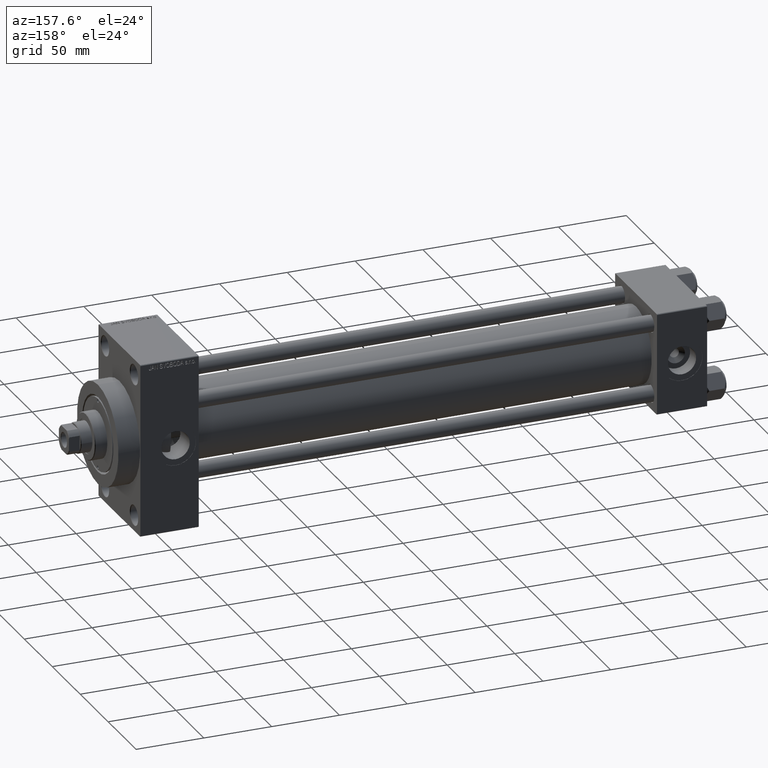
[diagram: clean part render]
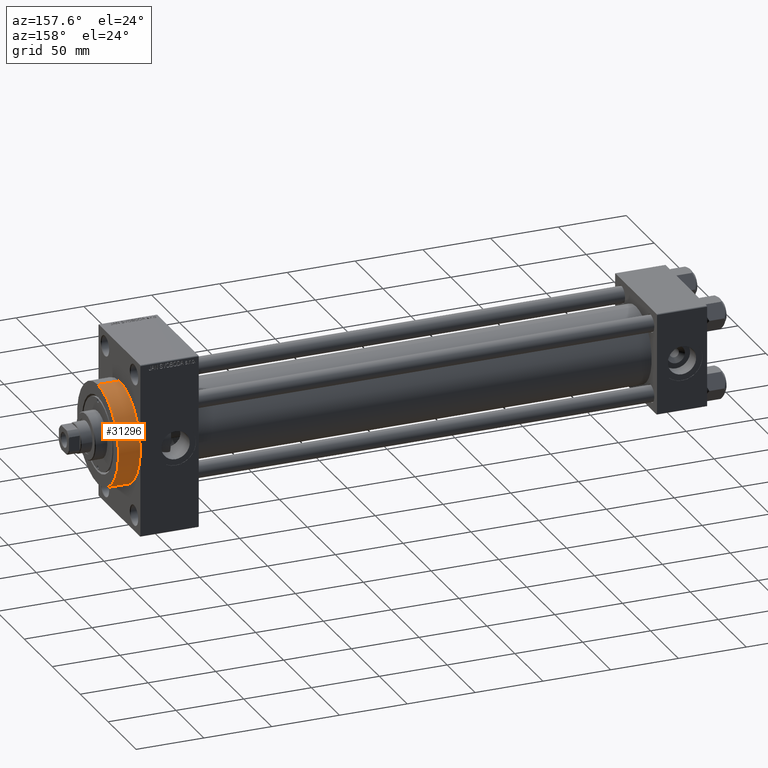
[diagram: same view with one face highlighted and labeled with its STEP entity id]
A machine part, auxiliary view. The second image highlights one B-rep face of the part: STEP entity #31296.
In plain terms, the highlighted cylindrical surface (partial cylindrical patch) has radius 37 mm, axis along (-1, -0, -0).
Its self-contained STEP definition (entity closure, byte-faithful):
#547 = DIRECTION ( 'NONE',  ( 0.000000000000000000, 0.000000000000000000, -1.000000000000000000 ) ) ;
#1601 = CARTESIAN_POINT ( 'NONE',  ( 434.0000000000000000, 0.000000000000000000, 37.00000000000000000 ) ) ;
#3195 = EDGE_CURVE ( 'NONE', #36743, #30446, #24139, .T. ) ;
#4001 = ORIENTED_EDGE ( 'NONE', *, *, #3195, .F. ) ;
#7215 = DIRECTION ( 'NONE',  ( -1.000000000000000000, -0.000000000000000000, -0.000000000000000000 ) ) ;
#8218 = VERTEX_POINT ( 'NONE', #49130 ) ;
#10504 = LINE ( 'NONE', #25065, #27083 ) ;
#12640 = EDGE_CURVE ( 'NONE', #29252, #8218, #14663, .T. ) ;
#13220 = VECTOR ( 'NONE', #43395, 1000.000000000000000 ) ;
#14663 = CIRCLE ( 'NONE', #48990, 37.00000000000000000 ) ;
#17410 = EDGE_CURVE ( 'NONE', #30446, #8218, #28157, .T. ) ;
#17609 = AXIS2_PLACEMENT_3D ( 'NONE', #18236, #7215, #48487 ) ;
#18236 = CARTESIAN_POINT ( 'NONE',  ( 434.0000000000000000, 0.000000000000000000, 0.000000000000000000 ) ) ;
#18905 = DIRECTION ( 'NONE',  ( 1.000000000000000000, 0.000000000000000000, 0.000000000000000000 ) ) ;
#19494 = ORIENTED_EDGE ( 'NONE', *, *, #28481, .T. ) ;
#20127 = AXIS2_PLACEMENT_3D ( 'NONE', #49151, #18905, #547 ) ;
#22235 = CYLINDRICAL_SURFACE ( 'NONE', #17609, 37.00000000000000000 ) ;
#24139 = CIRCLE ( 'NONE', #20127, 37.00000000000000000 ) ;
#24890 = CARTESIAN_POINT ( 'NONE',  ( 418.0000000000000000, 0.000000000000000000, 0.000000000000000000 ) ) ;
#25065 = CARTESIAN_POINT ( 'NONE',  ( 434.0000000000000000, 4.531193156845206793E-15, -37.00000000000000000 ) ) ;
#25410 = ORIENTED_EDGE ( 'NONE', *, *, #12640, .T. ) ;
#25751 = FACE_OUTER_BOUND ( 'NONE', #30885, .T. ) ;
#27083 = VECTOR ( 'NONE', #40308, 1000.000000000000000 ) ;
#28157 = LINE ( 'NONE', #1601, #13220 ) ;
#28481 = EDGE_CURVE ( 'NONE', #36743, #29252, #10504, .T. ) ;
#29252 = VERTEX_POINT ( 'NONE', #38155 ) ;
#30446 = VERTEX_POINT ( 'NONE', #37550 ) ;
#30885 = EDGE_LOOP ( 'NONE', ( #4001, #19494, #25410, #37514 ) ) ;
#31296 = ADVANCED_FACE ( 'NONE', ( #25751 ), #22235, .T. ) ;
#32631 = DIRECTION ( 'NONE',  ( 1.000000000000000000, 0.000000000000000000, 0.000000000000000000 ) ) ;
#36743 = VERTEX_POINT ( 'NONE', #38981 ) ;
#37514 = ORIENTED_EDGE ( 'NONE', *, *, #17410, .F. ) ;
#37550 = CARTESIAN_POINT ( 'NONE',  ( 434.0000000000000000, 0.000000000000000000, 37.00000000000000000 ) ) ;
#38155 = CARTESIAN_POINT ( 'NONE',  ( 418.0000000000000000, 4.531193156845206793E-15, -37.00000000000000000 ) ) ;
#38981 = CARTESIAN_POINT ( 'NONE',  ( 434.0000000000000000, 4.531193156845206793E-15, -37.00000000000000000 ) ) ;
#40308 = DIRECTION ( 'NONE',  ( -1.000000000000000000, -0.000000000000000000, -0.000000000000000000 ) ) ;
#43395 = DIRECTION ( 'NONE',  ( -1.000000000000000000, -0.000000000000000000, -0.000000000000000000 ) ) ;
#47872 = DIRECTION ( 'NONE',  ( 0.000000000000000000, 0.000000000000000000, -1.000000000000000000 ) ) ;
#48487 = DIRECTION ( 'NONE',  ( 0.000000000000000000, 0.000000000000000000, 1.000000000000000000 ) ) ;
#48990 = AXIS2_PLACEMENT_3D ( 'NONE', #24890, #32631, #47872 ) ;
#49130 = CARTESIAN_POINT ( 'NONE',  ( 418.0000000000000000, 0.000000000000000000, 37.00000000000000000 ) ) ;
#49151 = CARTESIAN_POINT ( 'NONE',  ( 434.0000000000000000, 0.000000000000000000, 0.000000000000000000 ) ) ;